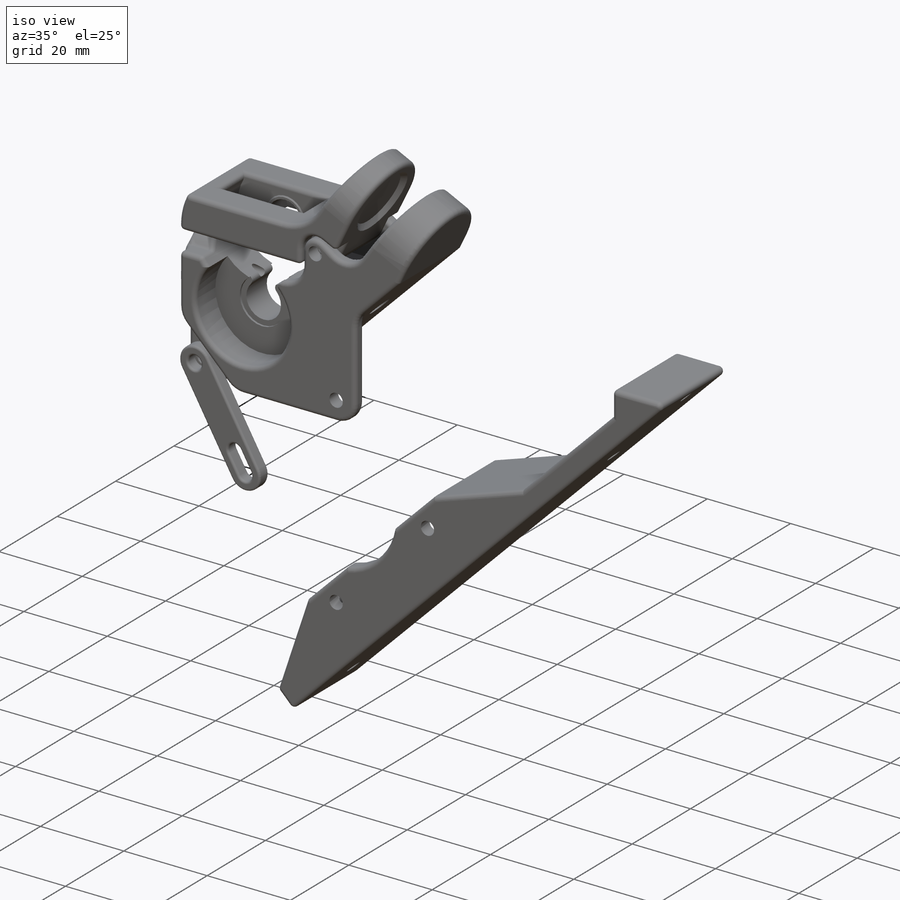
[diagram: iso view]
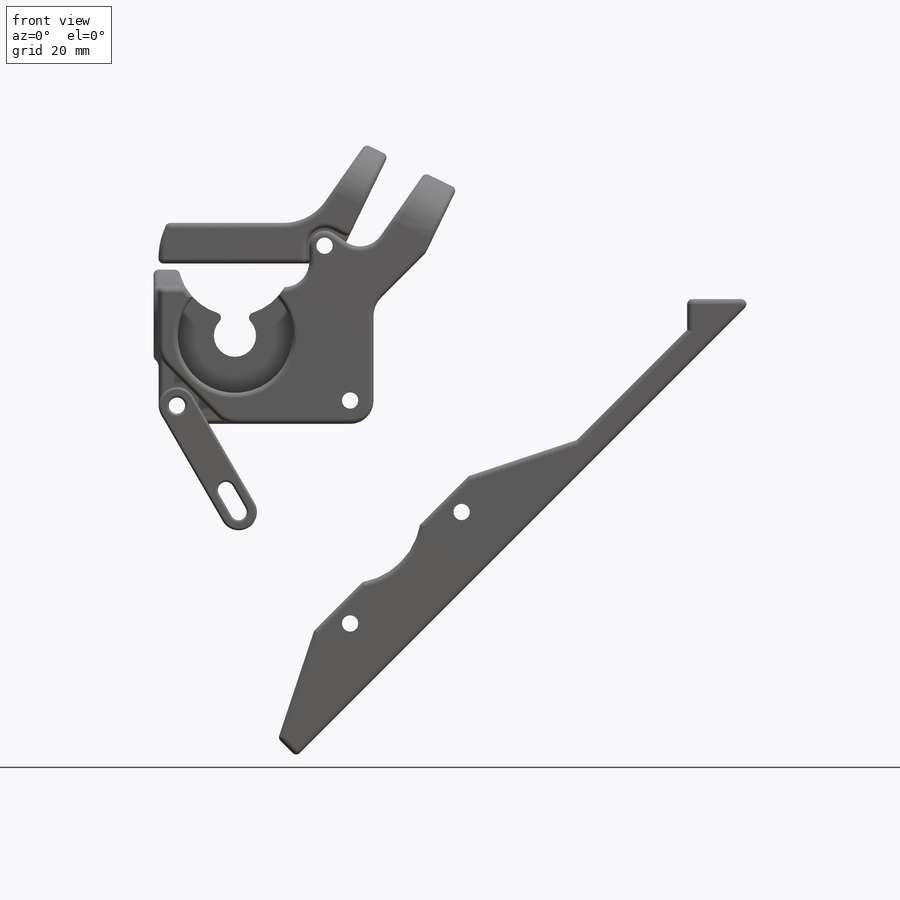
[diagram: front view]
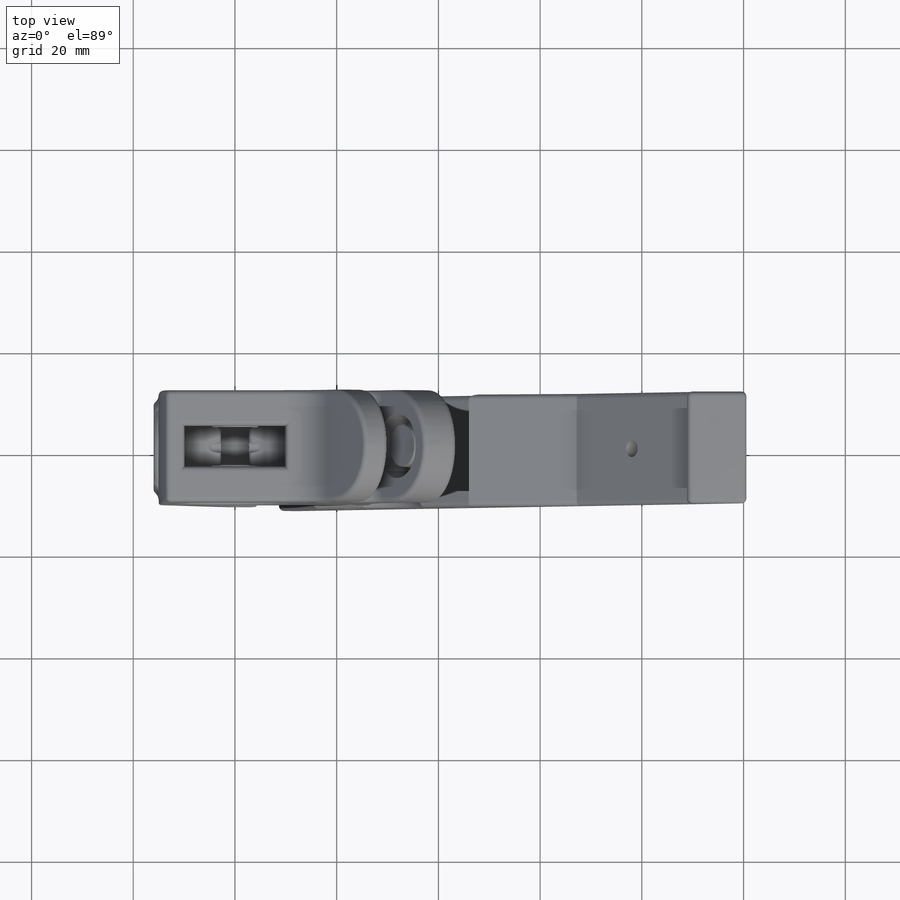
[diagram: top view]
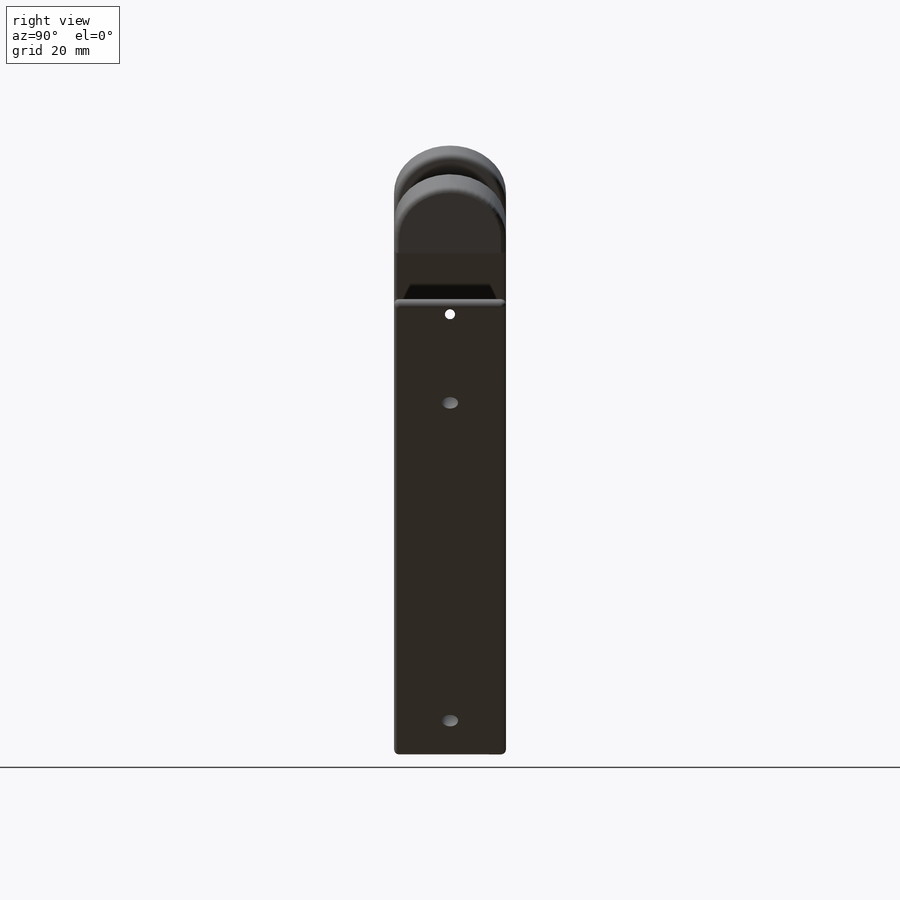
[diagram: right view]
SOLIDWORKS PART (.sldprt)
format: sldprt  version: not decoded by parser v0  size: 6,375,936 bytes
history: native  units: mm
features: sketch x39, extrude x18, cut_extrude x15, fillet x11, delete_body x4, chamfer x2, material x1, mirror x1 (+13 scaffold rows collapsed)
feature tree (104):
  scaffold x13  (default folders/planes/origin — collapsed)
  material  "Material <not specified>"
  sketch  "Sketch-HobbedBolt"  dims[D1=7.8mm D2=6.39mm]
  sketch  "Sketch-MainBearing"  dims[D1=22.0mm]
  sketch  "Sketch-Filamentchannel"  dims[D1=2.0mm]
  sketch  "Sketch-IdlerBearing"
  sketch  "Sketch-DriveGearsAndMotor"  dims[c1.D1=65.0mm c1.D2=17.8mm c1.D3=43.0mm c1.D4=3.2mm c1.D5=31.0mm c1.D6=~28.046206mm c2.D6=~131.89494deg c3.D6=~31.263562mm c4.D6=45.0deg c4.D7=4.0]
  sketch  "Sketch-BodyReferenceLines"  dims[c1.D2=22.0mm c1.D6=3.2mm c1.D7=~43.827678mm c1.D13=8.15mm c2.D2=1.75mm c2.D3=4.0mm c2.D4=1.0mm c2.D5=8.0mm c2.D7=3.5mm c2.D8=12.65mm c2.D9=13.0mm c2.D10=3.0mm c2.D11=4.0mm c2.D12=3.0mm c2.D13=~15.154175mm c3.D9=1.0mm c3.D13=13.0mm c3.D14=7.0mm c3.D15=8.0mm c3.D16=3.0mm c3.D17=~26.157158mm c4.D17=~3.853006deg c5.D17=15.0mm c5.D18=~18.732804mm c5.D1=3.0mm]
  sketch  "Sketch7"  dims[D1=0.25mm D2=0.25mm]
  extrude  "Boss-Extrude1"  Depth=4mm
  sketch  "Sketch10"  dims[D1=0.0mm D2=0.25mm]
  extrude  "Boss-Extrude2"  Depth=7mm
  sketch  "Sketch11"  dims[D1=1.5mm]
  cut_extrude  "Cut-Extrude1"  Depth=0.5mm
  mirror  "Mirror1"
  sketch  "Sketch12"  dims[D1=0.5mm]
  extrude  "Boss-Extrude3"  [1 undecoded]
  sketch  "Sketch13"
  extrude  "Boss-Extrude4"  [1 undecoded]
  sketch  "Sketch14"  dims[D1=0.0mm D2=0.0mm]
  extrude  "Boss-Extrude5"  [1 undecoded]
  sketch  "Sketch20"  dims[D1=~5.584604mm]
  cut_extrude  "Cut-Extrude3"  Depth=3.25mm
  cut_extrude  "Cut-Extrude4"  [1 undecoded]
  sketch  "Sketch20<2>"  dims[D1=3.25mm]
  sketch  "Sketch21"  dims[c1.D1=~2.917016mm c1.D2=~0.067133mm c2.D1=0.5mm]
  extrude  "Boss-Extrude11"  Depth=3mm
  sketch  "Sketch22"  dims[D1=0.0mm D2=0.0mm]
  extrude  "Boss-Extrude13"  Depth=3mm
  sketch  "Sketch15"  dims[D1=0.5mm]
  extrude  "Boss-Extrude6"  Depth=0.25mm
  extrude  "Boss-Extrude7"  [1 undecoded]
  sketch  "Sketch15<2>"  dims[D1=0.25mm]
  chamfer  "Chamfer1"  Distance=0.25mm Angle=45deg
  sketch  "Sketch16"  dims[D2=~2.154066mm D1=2.0mm]
  extrude  "Boss-Extrude8"  Depth=1mm
  sketch  "Sketch17"  dims[D1=0.0mm]
  extrude  "Boss-Extrude9"  Depth=1mm
  sketch  "Sketch18"  dims[D1=12.65mm]
  cut_extrude  "Cut-Extrude2"  [1 undecoded]
  chamfer  "Chamfer2"  Distance=1mm Angle=45deg
  sketch  "Sketch19"  dims[D1=9.0mm]
  extrude  "Boss-Extrude10"  Depth=1mm
  sketch  "Sketch23"  dims[D1=~2.568514mm D2=2.0mm]
  cut_extrude  "Cut-Extrude5"  [1 undecoded]
  sketch  "Sketch24"  dims[D2=~2.345517mm D1=3.0mm]
  cut_extrude  "Cut-Extrude6"  Depth=3.25mm
  sketch  "Sketch25"
  extrude  "Boss-Extrude14"  Depth=3mm
  sketch  "Sketch26"  dims[c1.D3=~4.581251mm c1.D2=~5.648917mm c2.D3=~5.173039mm c2.D2=5.0mm c3.D3=~23.846376mm c3.D1=2.0mm]
  extrude  "Boss-Extrude15"  [1 undecoded]
  sketch  "Sketch27"  dims[D1=2.0mm]
  cut_extrude  "Cut-Extrude7"  [1 undecoded]
  sketch  "Sketch28"  dims[D1=9.1mm]
  cut_extrude  "Cut-Extrude8"  Depth=3mm
  sketch  "Sketch29"  dims[D1=14.0mm D2=~0.057606mm]
  extrude  "Boss-Extrude16"  [1 undecoded]
  sketch  "Sketch30"  dims[D1=~10.77033mm]
  cut_extrude  "Cut-Extrude10"  [1 undecoded]
  sketch  "Sketch32"
  extrude  "Boss-Extrude17"  Depth=1mm
  sketch  "Sketch33"  dims[D1=4.0mm D2=6.0mm]
  cut_extrude  "Cut-Extrude11"  Depth=15mm
  fillet  "Fillet10"  Radius=2mm
  fillet  "Fillet1"  Radius=0.5mm
  fillet  "Fillet2"  Radius=4mm
  fillet  "Fillet3"  Radius=11mm
  fillet  "Fillet4"  Radius=11mm
  fillet  "Fillet5"  Radius=10mm
  fillet  "Fillet6"  Radius=1mm
  fillet  "Fillet7"  Radius=1mm
  fillet  "Fillet8"  Radius=5mm
  fillet  "Fillet9"  Radius=1mm
  sketch  "Sketch35"  dims[D1=5.0mm D2=10.0mm D3=20.0mm D4=45.0mm D5=6.0mm D6=6.0mm]
  extrude  "Boss-Extrude18"  [1 undecoded]
  sketch  "Sketch38"  dims[D2=22.0mm D1=0.0mm D3=3.0mm]
  extrude  "Boss-Extrude20"  [1 undecoded]
  sketch  "Sketch41"  dims[D1=4.0mm]
  cut_extrude  "Cut-Extrude12"  Depth=5mm
  sketch  "Sketch42"  dims[D1=2.25mm]
  cut_extrude  "Cut-Extrude13"  [1 undecoded]
  sketch  "Sketch43"  dims[D1=3.2mm]
  cut_extrude  "Cut-Extrude14"  [1 undecoded]
  sketch  "Sketch44"
  cut_extrude  "Cut-Extrude15"  [1 undecoded]
  sketch  "Sketch45"  dims[D1=8.0mm]
  cut_extrude  "Cut-Extrude16"  Depth=5mm
  fillet  "Fillet13"  Radius=1mm
  delete_body  "Body-Delete1"
  delete_body  "Body-Delete2"
  delete_body  "Body-Delete3"
  delete_body  "Body-Delete4"
decode coverage: 64 of 90 modeling features carry decoded parameters
note: ~ marks probable driven/reference dimensions
note: 16 parameter values undecoded
summary: no parameter record found for 16 features
note: suppression state not decoded; provenance and decode notes live in map.json
